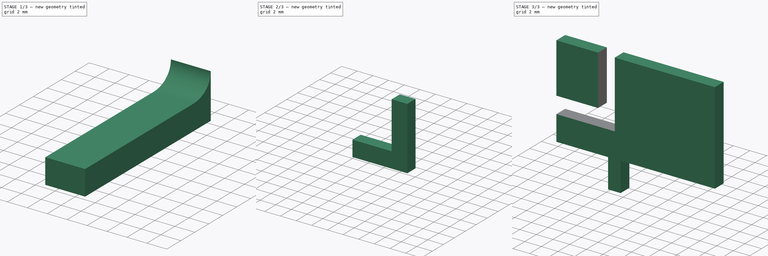
[diagram: build sequence overview — one tinted view per stage of 3, left to right]
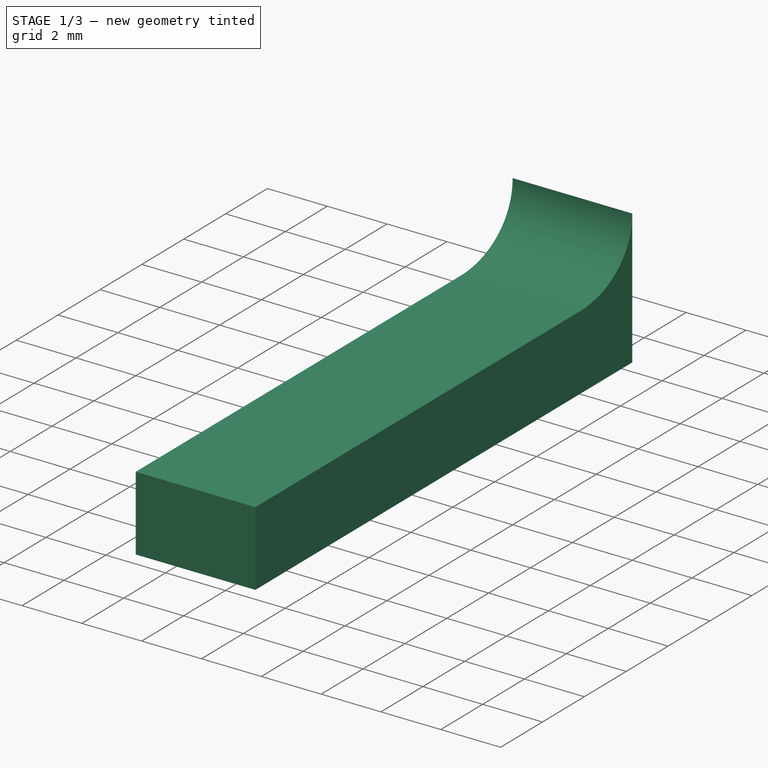
[diagram: stage 1 of 3 — iso view after this stage's code; geometry added in this stage tinted green]
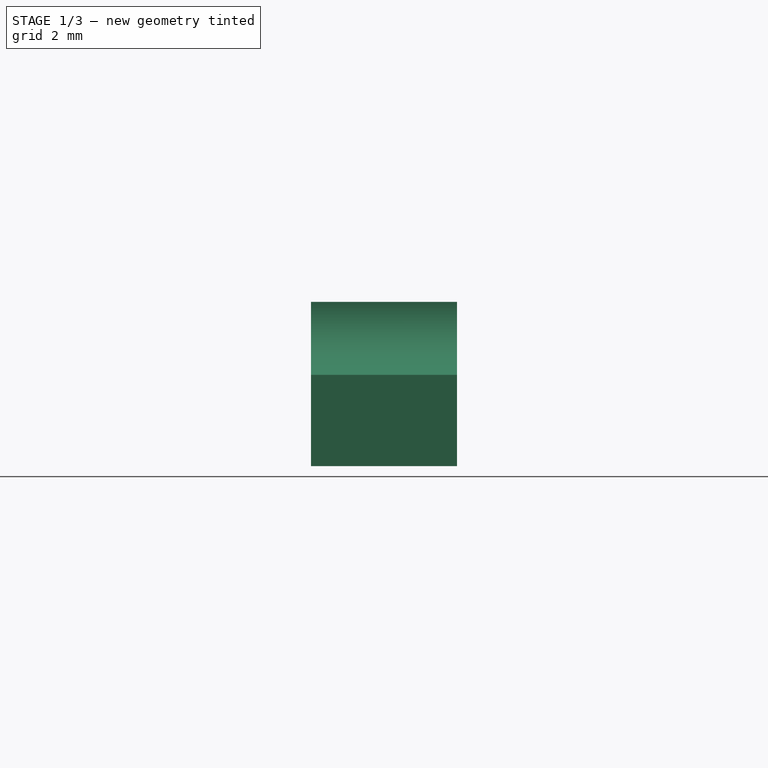
[diagram: stage 1 of 3 — front view after this stage's code; geometry added in this stage tinted green]
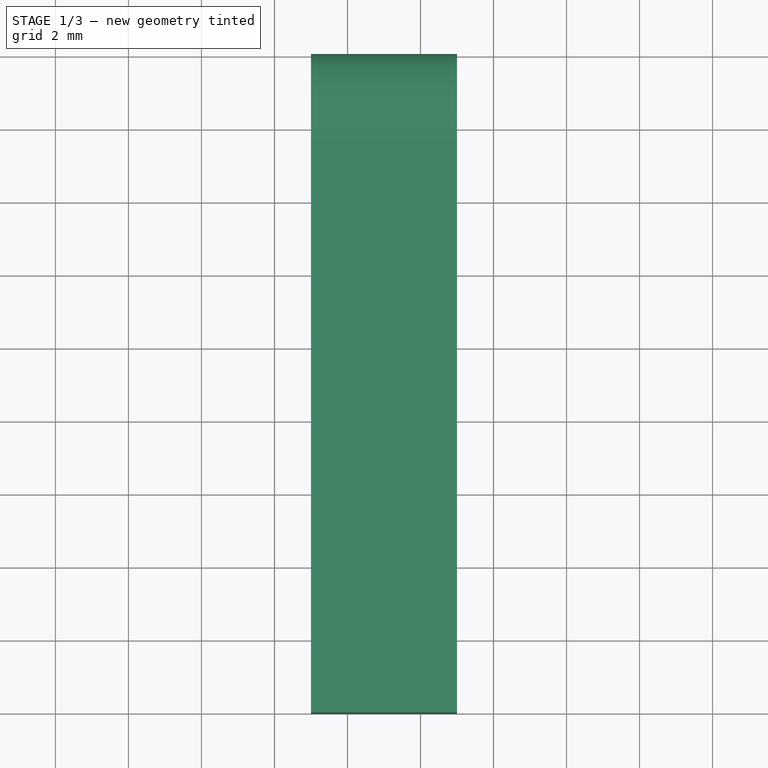
[diagram: stage 1 of 3 — top view after this stage's code; geometry added in this stage tinted green]
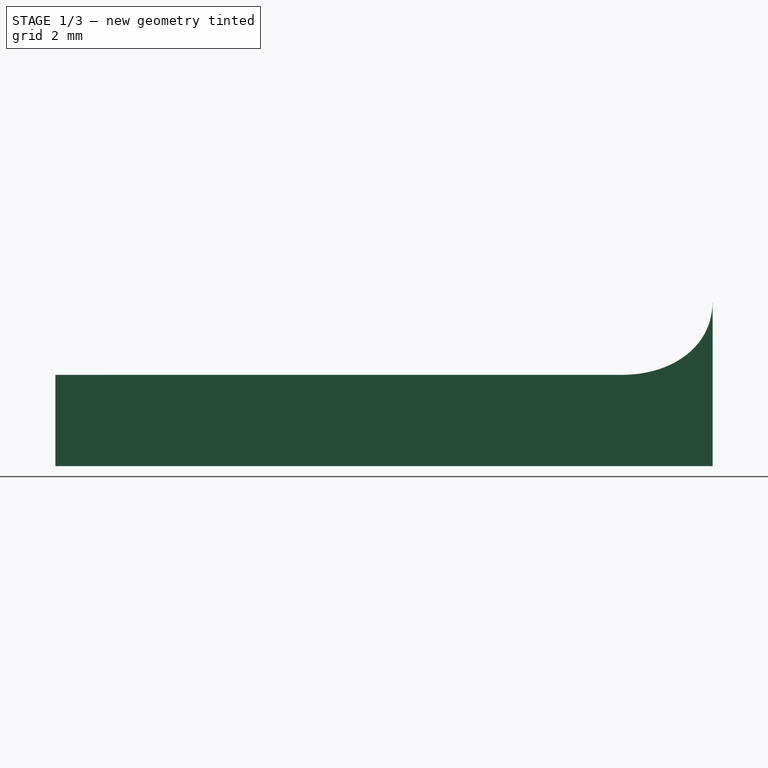
[diagram: stage 1 of 3 — right view after this stage's code; geometry added in this stage tinted green]
FCSTD DOCUMENT  (FreeCAD 0.21R)
Label: button_lever
License: All rights reserved
LicenseURL: http://en.wikipedia.org/wiki/All_rights_reserved
objects: Sketcher::SketchObject×5, Part::Extrusion×5, Part::Fillet×1, Part::Cut×1
note: 12 computed .brp shape members not serialized (recipe doc carries the construction recipe); baked Part::Feature solids carry a one-line shape summary decoded from their .brp

FEATURE [Sketcher::SketchObject] Sketch
  FullyConstrained = true
  sketch-geometry (4):
    g0: LineSegment StartX=0 StartY=0 StartZ=0 EndX=19 EndY=0 EndZ=0
    g1: LineSegment StartX=19 StartY=0 StartZ=0 EndX=19 EndY=1.5 EndZ=0
    g2: LineSegment StartX=19 StartY=1.5 StartZ=0 EndX=0 EndY=1.5 EndZ=0
    g3: LineSegment StartX=0 StartY=1.5 StartZ=0 EndX=0 EndY=0 EndZ=0
  constraints (11):
    c: Coincident(g0,g1)
    c: Coincident(g1,g2)
    c: Coincident(g2,g3)
    c: Coincident(g3,g0)
    c: Horizontal(g0)
    c: Horizontal(g2)
    c: Vertical(g1)
    c: Vertical(g3)
    c: Coincident(g0,g-1)
    c: DistanceY(g3,g3) = 1.5
    c: DistanceX(g0,g0) = 19
FEATURE [Part::Extrusion] Extrude
  Base = -> Sketch
  Dir = (0,0,1)
  DirMode = 2
  FaceMakerClass = Part::FaceMakerBullseye
  LengthFwd = 11
  LengthRev = 0
  Solid = true
  Symmetric = false
FEATURE [Sketcher::SketchObject] Sketch002
  FullyConstrained = true
  MapMode = 5
  Placement = pos=(0,0,0) rot=(0.57735,-0.57735,-0.57735;2.0944rad)
  Support = -> [Extrude]
  sketch-geometry (6):
    g0: LineSegment StartX=2.5 StartY=7.5 StartZ=0 EndX=18 EndY=7.5 EndZ=0
    g1: LineSegment StartX=18 StartY=7.5 StartZ=0 EndX=18 EndY=5 EndZ=0
    g2: LineSegment StartX=18 StartY=5 StartZ=0 EndX=0 EndY=5 EndZ=0
    g3: ArcOfEllipse CenterX=3.25098 CenterY=10.1008 CenterZ=0 NormalX=0 NormalY=0 NormalZ=1 MajorRadius=3.37534 MinorRadius=2.4372 AngleXU=-2.74231 StartAngle=5.98745 EndAngle=7.32514
    g4: LineSegment StartX=-4.6985e-12 StartY=9.5 StartZ=0 EndX=2.5 EndY=7.5 EndZ=0
    g5: LineSegment StartX=-4.6985e-12 StartY=9.5 StartZ=0 EndX=6e-16 EndY=5 EndZ=0
  constraints (17):
    c: DistanceX(g-1,g1) = 18
    c: DistanceY(g-1,g2) = 5
    c: DistanceY(g1,g1) = 2.5
    c: DistanceX(g3,g0) = 2.5
    c: Tangent(g3,g-2) = 1.5708
    c: Coincident(g1,g0)
    c: Vertical(g1)
    c: Coincident(g5,g2)
    c: Coincident(g2,g1)
    c: Horizontal(g2)
    c: Horizontal(g0)
    c: Tangent(g0,g3) = -1.5708
    c: Tangent(g5,g3) = -1.5708
    c: Coincident(g4,g5)
    c: Coincident(g4,g0)
    c: Distance(g3,g4) = 2.5
    c: DistanceY(g0,g3) = 2
FEATURE [Part::Extrusion] Extrude002
  Base = -> Sketch002
  Dir = (-1,0,0)
  DirMode = 2
  FaceMakerClass = Part::FaceMakerBullseye
  LengthFwd = 0
  LengthRev = 4
  Placement = pos=(1,0,0) rot=(0,0,1;0rad)
  Solid = true
  Symmetric = false
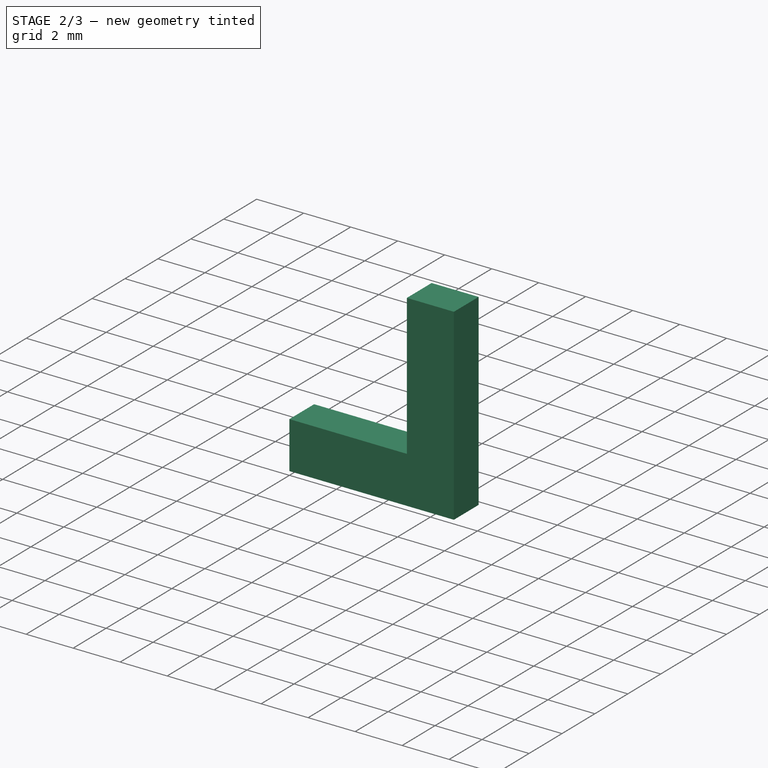
[diagram: stage 2 of 3 — iso view after this stage's code; geometry added in this stage tinted green]
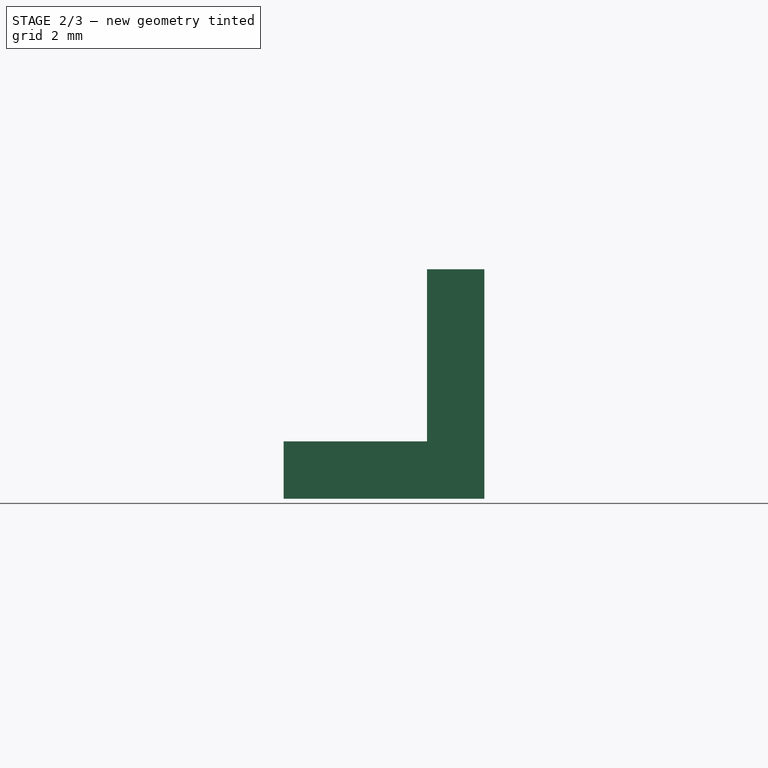
[diagram: stage 2 of 3 — front view after this stage's code; geometry added in this stage tinted green]
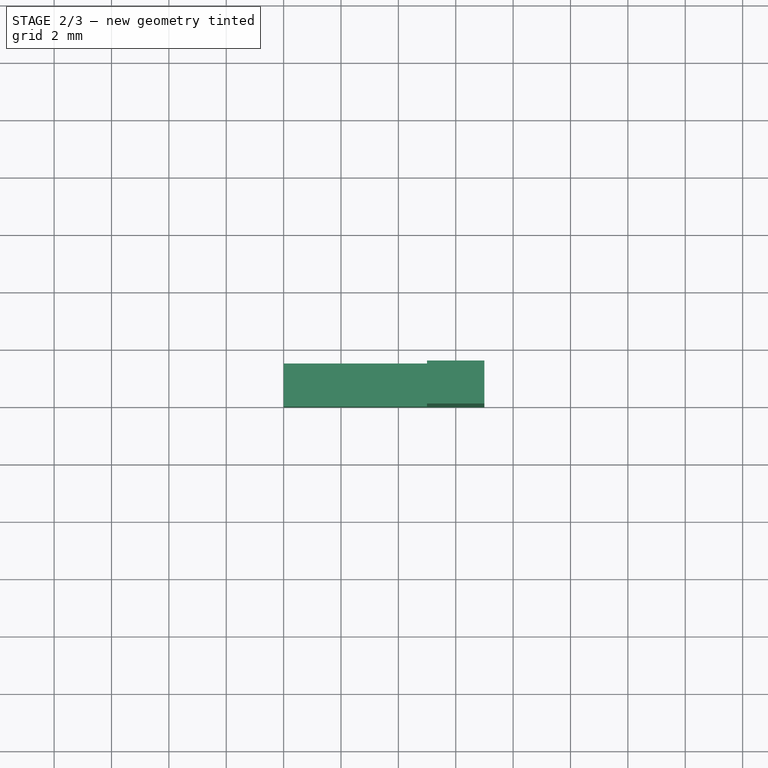
[diagram: stage 2 of 3 — top view after this stage's code; geometry added in this stage tinted green]
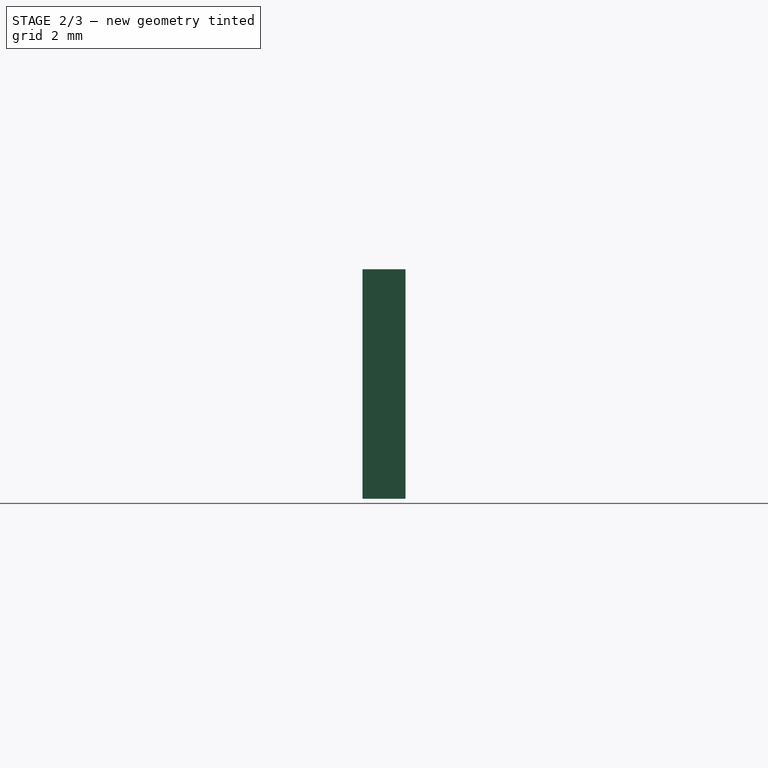
[diagram: stage 2 of 3 — right view after this stage's code; geometry added in this stage tinted green]
FEATURE [Sketcher::SketchObject] Sketch001
  ExternalGeometry = -> [Extrude]
  FullyConstrained = true
  MapMode = 5
  Placement = pos=(0,0,11) rot=(0,0,1;0rad)
  Support = -> [Extrude]
  sketch-geometry (6):
    g0: LineSegment StartX=19 StartY=0 StartZ=0 EndX=19 EndY=-16 EndZ=0
    g1: LineSegment StartX=19 StartY=-16 StartZ=0 EndX=3.0056e-11 EndY=-16 EndZ=0
    g2: LineSegment StartX=3.00557e-11 StartY=-16 StartZ=0 EndX=0 EndY=0 EndZ=0
    g3: LineSegment StartX=19 StartY=0 StartZ=0 EndX=19 EndY=1.5 EndZ=0
    g4: LineSegment StartX=19 StartY=1.5 StartZ=0 EndX=0 EndY=1.5 EndZ=0
    g5: LineSegment StartX=0 StartY=1.5 StartZ=0 EndX=0 EndY=0 EndZ=0
  constraints (15):
    c: Coincident(g0,g1)
    c: Coincident(g1,g2)
    c: Coincident(g3,g4)
    c: Coincident(g4,g5)
    c: Parallel(g2,g0)
    c: Parallel(g5,g3)
    c: Parallel(g1,g4)
    c: Coincident(g2,g5)
    c: Coincident(g2,g-1)
    c: Coincident(g0,g3)
    c: Coincident(g0,g-3)
    c: Coincident(g3,g-3)
    c: Perpendicular(g4,g3)
    c: Perpendicular(g0,g1)
    c: DistanceY(g2,g2) = 16
FEATURE [Part::Extrusion] Extrude001
  Base = -> Sketch001
  Dir = (0,0,1)
  DirMode = 2
  FaceMakerClass = Part::FaceMakerBullseye
  LengthFwd = 2.4
  LengthRev = 0
  Solid = true
  Symmetric = false
FEATURE [Part::Fillet] Fillet
  Base = -> Extrude002
  Edges = 4 edges r=0.3: [Edge2,Edge5,Edge6,Edge7]
FEATURE [Sketcher::SketchObject] Sketch004
  ExternalGeometry = -> [Fillet,Extrude001]
  FullyConstrained = true
  MapMode = 5
  Placement = pos=(0,0,0) rot=(1,0,0;1.5708rad)
  Support = -> [Extrude]
  sketch-geometry (6):
    g0: LineSegment StartX=5 StartY=11 StartZ=0 EndX=7 EndY=11 EndZ=0
    g1: LineSegment StartX=7 StartY=11 StartZ=0 EndX=7 EndY=3 EndZ=0
    g2: LineSegment StartX=5 StartY=5 StartZ=0 EndX=5 EndY=11 EndZ=0
    g3: LineSegment StartX=0 StartY=5 StartZ=0 EndX=5 EndY=5 EndZ=0
    g4: LineSegment StartX=7 StartY=3 StartZ=0 EndX=0 EndY=3 EndZ=0
    g5: LineSegment StartX=0 StartY=3 StartZ=0 EndX=0 EndY=5 EndZ=0
  constraints (17):
    c: Coincident(g0,g1)
    c: Coincident(g2,g0)
    c: Horizontal(g0)
    c: Vertical(g1)
    c: Vertical(g2)
    c: Coincident(g4,g5)
    c: Coincident(g5,g3)
    c: Horizontal(g3)
    c: Horizontal(g4)
    c: Vertical(g5)
    c: PointOnObject(g3,g-2)
    c: PointOnObject(g0,g-4)
    c: DistanceY(g5,g5) = 2
    c: Equal(g5,g0)
    c: Coincident(g1,g4)
    c: Coincident(g3,g2)
    c: Coincident(g2,g-3)
FEATURE [Part::Extrusion] Extrude004
  Base = -> Sketch004
  Dir = (0,-1,2e-16)
  DirMode = 2
  FaceMakerClass = Part::FaceMakerBullseye
  LengthFwd = -1.5
  LengthRev = 0
  Solid = true
  Symmetric = false
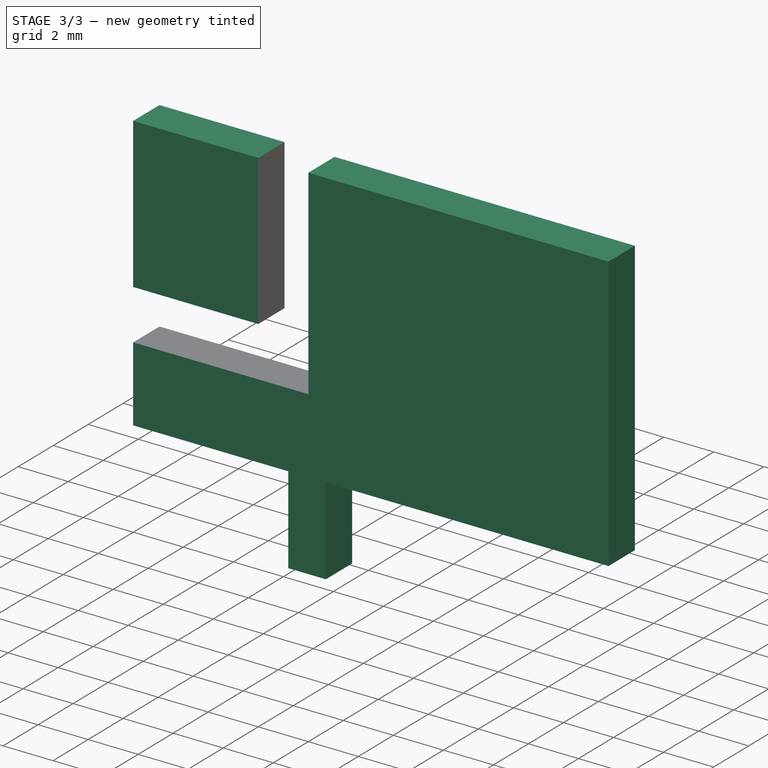
[diagram: stage 3 of 3 — iso view after this stage's code; geometry added in this stage tinted green]
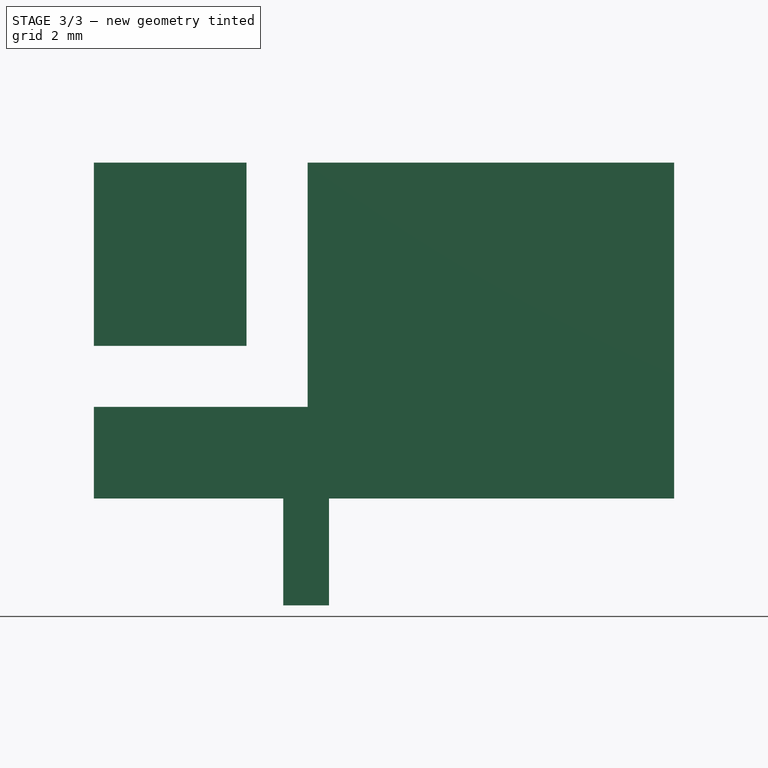
[diagram: stage 3 of 3 — front view after this stage's code; geometry added in this stage tinted green]
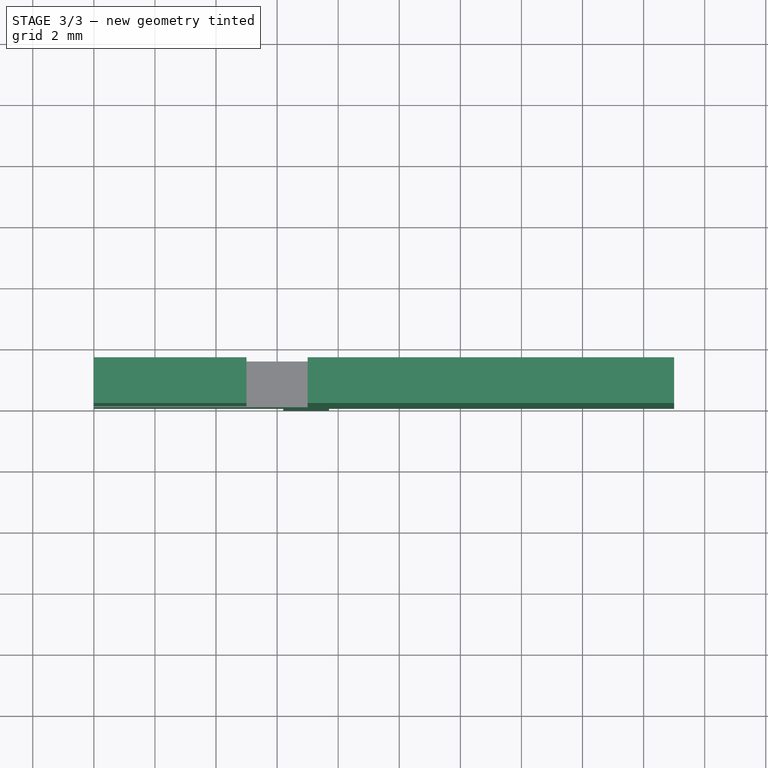
[diagram: stage 3 of 3 — top view after this stage's code; geometry added in this stage tinted green]
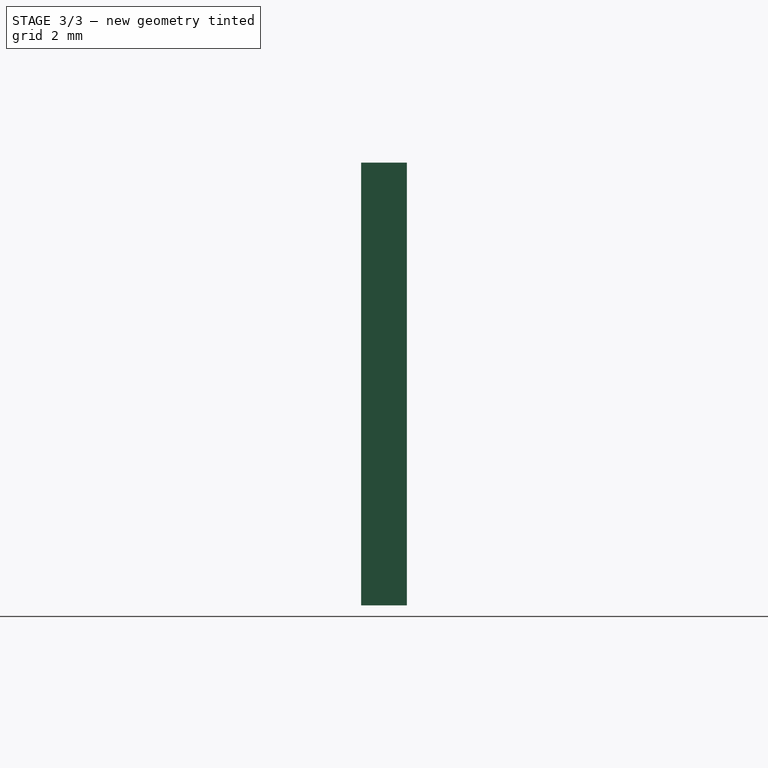
[diagram: stage 3 of 3 — right view after this stage's code; geometry added in this stage tinted green]
FEATURE [Sketcher::SketchObject] Sketch003
  ExternalGeometry = -> [Extrude]
  FullyConstrained = true
  MapMode = 5
  Placement = pos=(0,0,0) rot=(1,0,0;3.14159rad)
  Support = -> [Extrude]
  sketch-geometry (4):
    g0: LineSegment StartX=6.2 StartY=0 StartZ=0 EndX=7.7 EndY=0 EndZ=0
    g1: LineSegment StartX=7.7 StartY=0 StartZ=0 EndX=7.7 EndY=-1.5 EndZ=0
    g2: LineSegment StartX=7.7 StartY=-1.5 StartZ=0 EndX=6.2 EndY=-1.5 EndZ=0
    g3: LineSegment StartX=6.2 StartY=-1.5 StartZ=0 EndX=6.2 EndY=0 EndZ=0
  constraints (12):
    c: Coincident(g0,g1)
    c: Coincident(g1,g2)
    c: Coincident(g2,g3)
    c: Coincident(g3,g0)
    c: Horizontal(g0)
    c: Horizontal(g2)
    c: Vertical(g1)
    c: Vertical(g3)
    c: DistanceX(g-1,g0) = 6.2
    c: Equal(g0,g3)
    c: PointOnObject(g2,g-3)
    c: Horizontal(g-1,g0)
FEATURE [Part::Extrusion] Extrude003
  Base = -> Sketch003
  Dir = (0,0,-1)
  DirMode = 2
  FaceMakerClass = Part::FaceMakerBullseye
  LengthFwd = 3.5
  LengthRev = 0
  Solid = true
  Symmetric = false
FEATURE [Part::Cut] Cut
  Base = -> Extrude
  Refine = true
  Tool = -> Extrude004
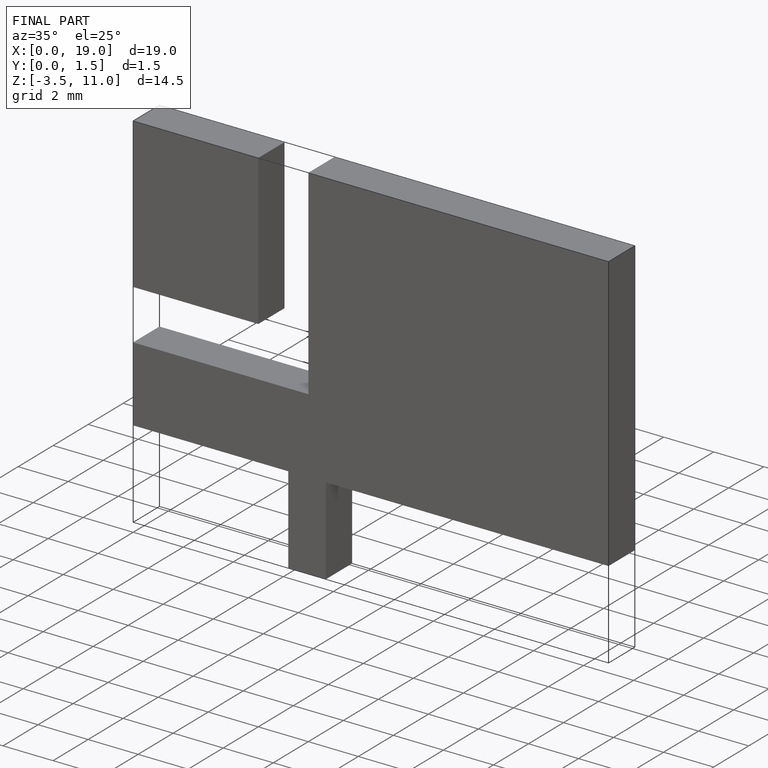
[diagram: finished part — iso view with bounding-box wireframe]
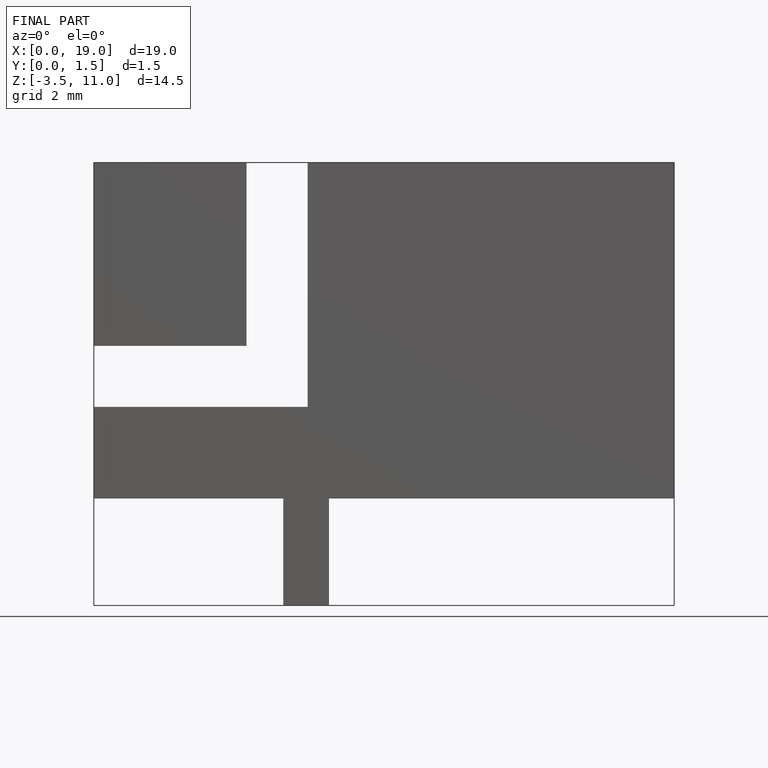
[diagram: finished part — front view with bounding-box wireframe]
